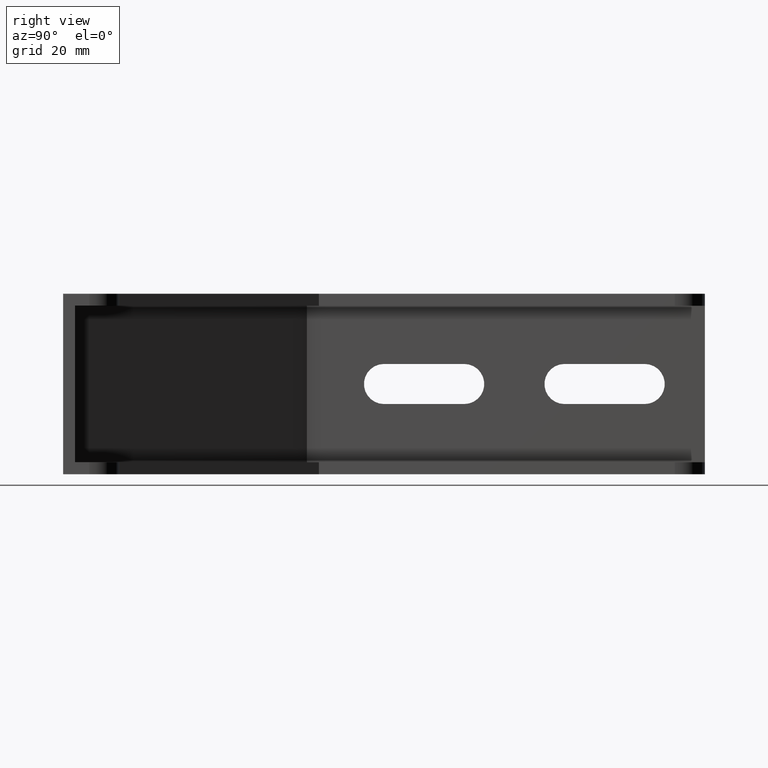
[diagram: clean part render]
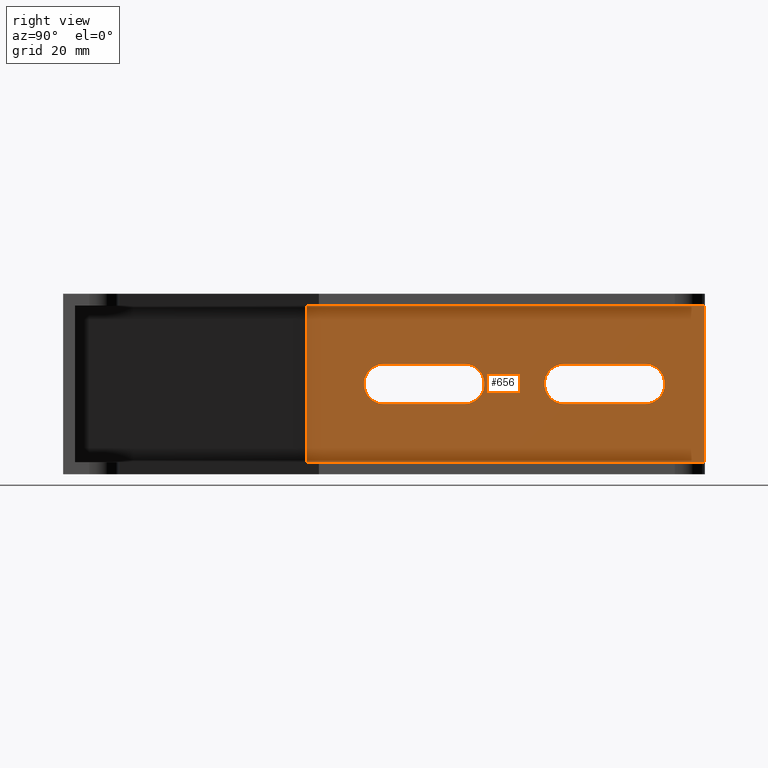
[diagram: same view with one face highlighted and labeled with its STEP entity id]
A machine part, right view. The second image highlights one B-rep face of the part: STEP entity #656.
In plain terms, the highlighted planar face has unit normal (-1, 0, 0).
Its self-contained STEP definition (entity closure, byte-faithful):
#20=FACE_BOUND('',#111,.T.);
#21=FACE_BOUND('',#112,.T.);
#39=PLANE('',#713);
#72=FACE_OUTER_BOUND('',#110,.T.);
#110=EDGE_LOOP('',(#589,#590,#591,#592));
#111=EDGE_LOOP('',(#593,#594,#595,#596));
#112=EDGE_LOOP('',(#597,#598,#599,#600));
#153=LINE('',#1005,#223);
#161=LINE('',#1023,#231);
#170=LINE('',#1040,#240);
#173=LINE('',#1052,#243);
#176=LINE('',#1057,#246);
#178=LINE('',#1064,#248);
#181=LINE('',#1072,#251);
#185=LINE('',#1081,#255);
#223=VECTOR('',#804,99.2162736769639);
#231=VECTOR('',#820,99.2162736769639);
#240=VECTOR('',#839,39.);
#243=VECTOR('',#852,20.);
#246=VECTOR('',#857,20.);
#248=VECTOR('',#865,20.);
#251=VECTOR('',#874,20.);
#255=VECTOR('',#888,39.);
#275=CIRCLE('',#699,5.);
#276=CIRCLE('',#703,5.);
#277=CIRCLE('',#706,5.);
#278=CIRCLE('',#709,5.);
#321=VERTEX_POINT('',#1002);
#322=VERTEX_POINT('',#1004);
#327=VERTEX_POINT('',#1020);
#328=VERTEX_POINT('',#1022);
#333=VERTEX_POINT('',#1045);
#334=VERTEX_POINT('',#1047);
#335=VERTEX_POINT('',#1051);
#336=VERTEX_POINT('',#1055);
#337=VERTEX_POINT('',#1061);
#338=VERTEX_POINT('',#1063);
#339=VERTEX_POINT('',#1067);
#340=VERTEX_POINT('',#1071);
#392=EDGE_CURVE('',#321,#322,#153,.T.);
#401=EDGE_CURVE('',#328,#327,#161,.F.);
#411=EDGE_CURVE('',#328,#321,#170,.T.);
#414=EDGE_CURVE('',#334,#333,#275,.T.);
#416=EDGE_CURVE('',#335,#334,#173,.T.);
#419=EDGE_CURVE('',#333,#336,#176,.T.);
#420=EDGE_CURVE('',#336,#335,#276,.T.);
#422=EDGE_CURVE('',#338,#337,#178,.T.);
#424=EDGE_CURVE('',#339,#338,#277,.T.);
#426=EDGE_CURVE('',#340,#339,#181,.T.);
#428=EDGE_CURVE('',#337,#340,#278,.T.);
#431=EDGE_CURVE('',#322,#327,#185,.F.);
#589=ORIENTED_EDGE('',*,*,#401,.T.);
#590=ORIENTED_EDGE('',*,*,#431,.F.);
#591=ORIENTED_EDGE('',*,*,#392,.F.);
#592=ORIENTED_EDGE('',*,*,#411,.F.);
#593=ORIENTED_EDGE('',*,*,#419,.T.);
#594=ORIENTED_EDGE('',*,*,#420,.T.);
#595=ORIENTED_EDGE('',*,*,#416,.T.);
#596=ORIENTED_EDGE('',*,*,#414,.T.);
#597=ORIENTED_EDGE('',*,*,#426,.T.);
#598=ORIENTED_EDGE('',*,*,#424,.T.);
#599=ORIENTED_EDGE('',*,*,#422,.T.);
#600=ORIENTED_EDGE('',*,*,#428,.T.);
#656=ADVANCED_FACE('',(#72,#20,#21),#39,.F.);
#699=AXIS2_PLACEMENT_3D('',#1048,#847,#848);
#703=AXIS2_PLACEMENT_3D('',#1059,#860,#861);
#706=AXIS2_PLACEMENT_3D('',#1068,#869,#870);
#709=AXIS2_PLACEMENT_3D('',#1075,#878,#879);
#713=AXIS2_PLACEMENT_3D('',#1082,#889,#890);
#804=DIRECTION('',(0.,-1.,0.));
#820=DIRECTION('',(0.,1.,0.));
#839=DIRECTION('',(-3.13139827458377E-16,0.,-1.));
#847=DIRECTION('center_axis',(-1.,0.,0.));
#848=DIRECTION('ref_axis',(0.,4.47597146508408E-17,-1.));
#852=DIRECTION('',(0.,-1.,-4.47597146508407E-17));
#857=DIRECTION('',(0.,1.,1.55782017113356E-16));
#860=DIRECTION('center_axis',(-1.,0.,0.));
#861=DIRECTION('ref_axis',(0.,-4.47597146508408E-17,1.));
#865=DIRECTION('',(0.,-1.,-2.66804319575872E-16));
#869=DIRECTION('center_axis',(-1.,0.,0.));
#870=DIRECTION('ref_axis',(0.,-4.47597146508407E-17,1.));
#874=DIRECTION('',(0.,1.,1.55782017113356E-16));
#878=DIRECTION('center_axis',(-1.,0.,0.));
#879=DIRECTION('ref_axis',(0.,4.47597146508407E-17,-1.));
#888=DIRECTION('',(0.,0.,-1.));
#889=DIRECTION('center_axis',(-1.,0.,0.));
#890=DIRECTION('ref_axis',(0.,-1.,0.));
#1002=CARTESIAN_POINT('',(-72.0444887501913,160.,-19.5));
#1004=CARTESIAN_POINT('',(-72.0444887501913,60.7837263230361,-19.5));
#1005=CARTESIAN_POINT('',(-72.0444887501913,160.,-19.5));
#1020=CARTESIAN_POINT('',(-72.0444887501913,60.7837263230361,19.5));
#1022=CARTESIAN_POINT('',(-72.0444887501913,160.,19.5));
#1023=CARTESIAN_POINT('',(-72.0444887501913,114.108522461202,19.5));
#1040=CARTESIAN_POINT('',(-72.0444887501913,160.,9.75));
#1045=CARTESIAN_POINT('',(-72.0444887501913,80.,4.99999627135646));
#1047=CARTESIAN_POINT('',(-72.0444887501913,80.,-5.00000372864353));
#1048=CARTESIAN_POINT('Origin',(-72.0444887501913,80.,-3.72864353614943E-6));
#1051=CARTESIAN_POINT('',(-72.0444887501913,100.,-5.00000372864353));
#1052=CARTESIAN_POINT('',(-72.0444887501913,130.,-5.00000372864353));
#1055=CARTESIAN_POINT('',(-72.0444887501913,100.,4.99999627135647));
#1057=CARTESIAN_POINT('',(-72.0444887501913,120.,4.99999627135647));
#1059=CARTESIAN_POINT('Origin',(-72.0444887501913,100.,-2.22044604925031E-15));
#1061=CARTESIAN_POINT('',(-72.0444887501913,125.,-5.));
#1063=CARTESIAN_POINT('',(-72.0444887501913,145.,-4.99999999999999));
#1064=CARTESIAN_POINT('',(-72.0444887501913,152.5,-4.99999999999999));
#1067=CARTESIAN_POINT('',(-72.0444887501913,145.,5.00000000000001));
#1068=CARTESIAN_POINT('Origin',(-72.0444887501913,145.,6.66133814775094E-15));
#1071=CARTESIAN_POINT('',(-72.0444887501913,125.,5.));
#1072=CARTESIAN_POINT('',(-72.0444887501913,142.5,5.00000000000001));
#1075=CARTESIAN_POINT('Origin',(-72.0444887501913,125.,6.66133814775094E-15));
#1081=CARTESIAN_POINT('',(-72.0444887501913,60.7837263230361,0.));
#1082=CARTESIAN_POINT('Origin',(-72.0444887501913,160.,0.));